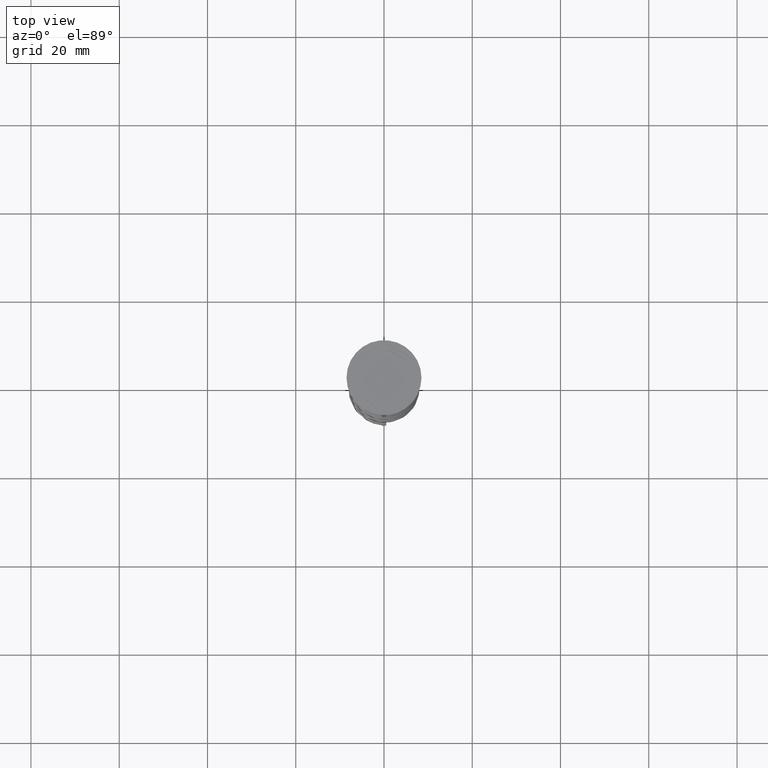
[diagram: clean part render]
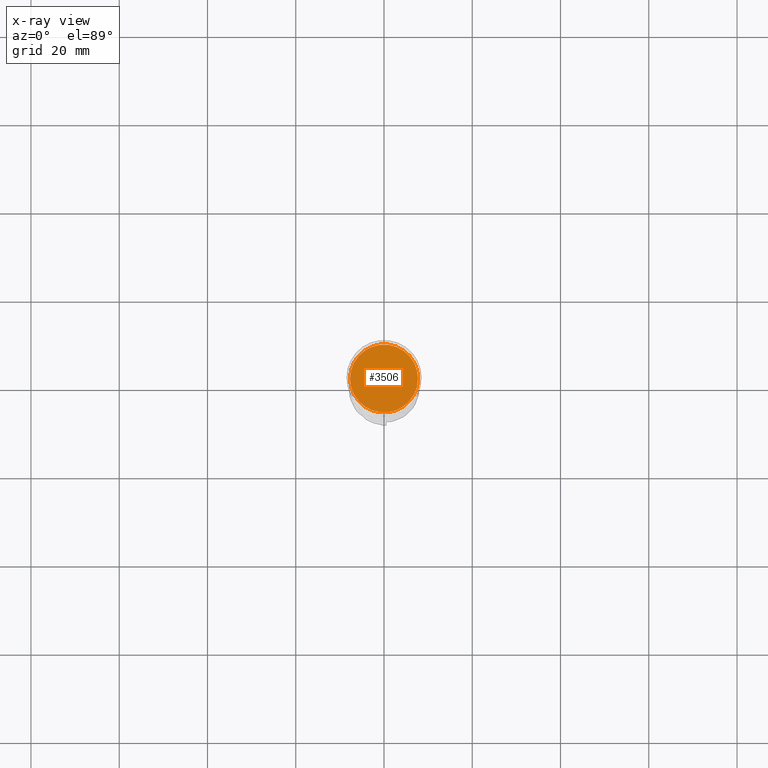
[diagram: x-ray — body ghosted, one internal face saturated and labeled with its STEP entity id]
A machine part, top view, then the same camera in x-ray: the body is ghosted and one INTERNAL B-rep face — a face not visible from any outside direction — is saturated and labeled: STEP entity #3506.
In plain terms, the highlighted planar face has unit normal (0, 0, -1).
Its self-contained STEP definition (entity closure, byte-faithful):
#94 = AXIS2_PLACEMENT_3D ( 'NONE', #3242, #610, #1771 ) ;
#214 = CIRCLE ( 'NONE', #1254, 7.700000000000001954 ) ;
#473 = CARTESIAN_POINT ( 'NONE',  ( 0.000000000000000000, 0.000000000000000000, -12.00000000000000000 ) ) ;
#538 = DIRECTION ( 'NONE',  ( -1.000000000000000000, 0.000000000000000000, 0.000000000000000000 ) ) ;
#610 = DIRECTION ( 'NONE',  ( -0.000000000000000000, -0.000000000000000000, 1.000000000000000000 ) ) ;
#849 = DIRECTION ( 'NONE',  ( 0.000000000000000000, 0.000000000000000000, -1.000000000000000000 ) ) ;
#941 = VERTEX_POINT ( 'NONE', #2402 ) ;
#1135 = ORIENTED_EDGE ( 'NONE', *, *, #1298, .T. ) ;
#1177 = VERTEX_POINT ( 'NONE', #2290 ) ;
#1254 = AXIS2_PLACEMENT_3D ( 'NONE', #2291, #2268, #538 ) ;
#1298 = EDGE_CURVE ( 'NONE', #941, #1177, #2633, .T. ) ;
#1731 = ORIENTED_EDGE ( 'NONE', *, *, #2677, .T. ) ;
#1771 = DIRECTION ( 'NONE',  ( -1.000000000000000000, 0.000000000000000000, 0.000000000000000000 ) ) ;
#1943 = PLANE ( 'NONE',  #2040 ) ;
#2040 = AXIS2_PLACEMENT_3D ( 'NONE', #473, #849, #3427 ) ;
#2268 = DIRECTION ( 'NONE',  ( -0.000000000000000000, -0.000000000000000000, 1.000000000000000000 ) ) ;
#2290 = CARTESIAN_POINT ( 'NONE',  ( 7.700000000000001954, 9.613477373306725302E-16, -12.00000000000000000 ) ) ;
#2291 = CARTESIAN_POINT ( 'NONE',  ( 0.000000000000000000, 0.000000000000000000, -12.00000000000000000 ) ) ;
#2402 = CARTESIAN_POINT ( 'NONE',  ( -7.700000000000001954, 0.000000000000000000, -12.00000000000000000 ) ) ;
#2633 = CIRCLE ( 'NONE', #94, 7.700000000000001954 ) ;
#2677 = EDGE_CURVE ( 'NONE', #1177, #941, #214, .T. ) ;
#3242 = CARTESIAN_POINT ( 'NONE',  ( 0.000000000000000000, 0.000000000000000000, -12.00000000000000000 ) ) ;
#3427 = DIRECTION ( 'NONE',  ( -1.000000000000000000, 0.000000000000000000, -0.000000000000000000 ) ) ;
#3479 = EDGE_LOOP ( 'NONE', ( #1135, #1731 ) ) ;
#3506 = ADVANCED_FACE ( 'NONE', ( #3730 ), #1943, .F. ) ;
#3730 = FACE_OUTER_BOUND ( 'NONE', #3479, .T. ) ;